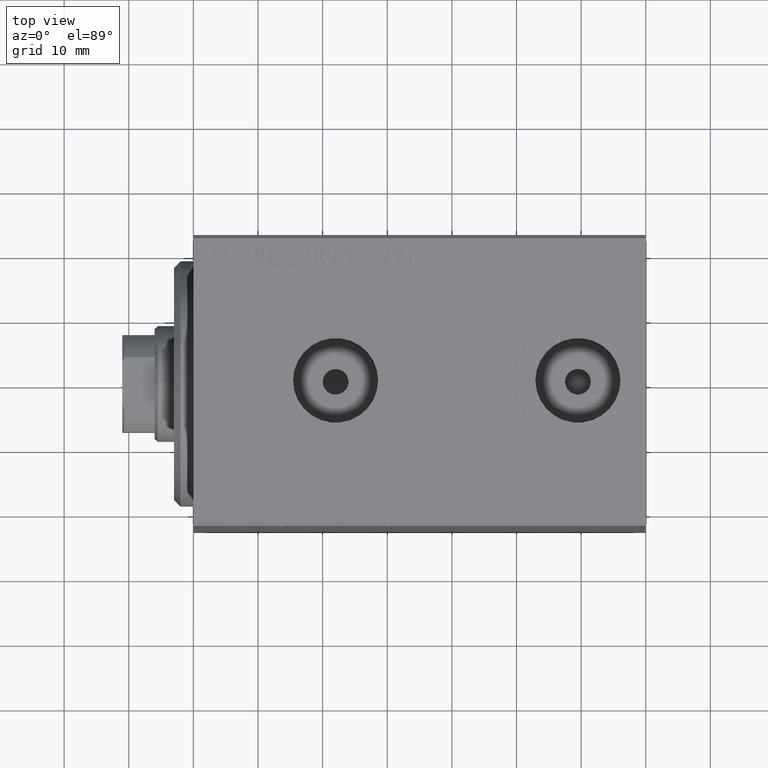
[diagram: clean part render]
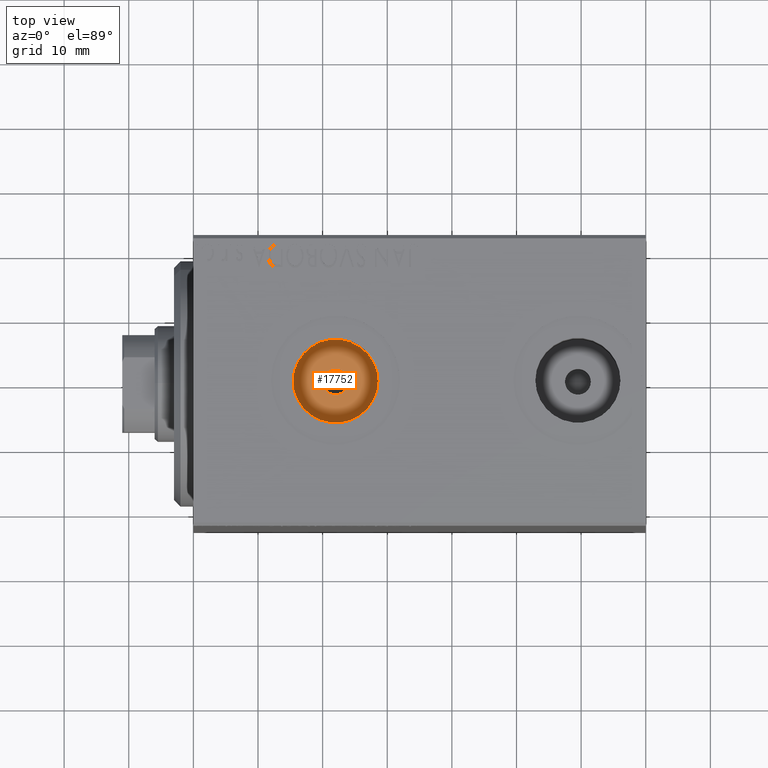
[diagram: same view with one face highlighted and labeled with its STEP entity id]
A machine part, top view. The second image highlights one B-rep face of the part: STEP entity #17752.
In plain terms, the highlighted planar face has unit normal (0, 0, 1).
Its self-contained STEP definition (entity closure, byte-faithful):
#896 = ORIENTED_EDGE ( 'NONE', *, *, #9051, .F. ) ;
#2394 = DIRECTION ( 'NONE',  ( 1.000000000000000000, 0.000000000000000000, 0.000000000000000000 ) ) ;
#2836 = DIRECTION ( 'NONE',  ( 1.000000000000000000, 0.000000000000000000, 0.000000000000000000 ) ) ;
#5828 = CIRCLE ( 'NONE', #29979, 2.000000000000001776 ) ;
#6339 = VERTEX_POINT ( 'NONE', #38055 ) ;
#6794 = AXIS2_PLACEMENT_3D ( 'NONE', #13448, #43482, #23896 ) ;
#9051 = EDGE_CURVE ( 'NONE', #41443, #6339, #5828, .T. ) ;
#9918 = EDGE_CURVE ( 'NONE', #6339, #41443, #23604, .T. ) ;
#11534 = AXIS2_PLACEMENT_3D ( 'NONE', #16857, #16636, #2836 ) ;
#13298 = DIRECTION ( 'NONE',  ( 0.000000000000000000, 0.000000000000000000, 1.000000000000000000 ) ) ;
#13448 = CARTESIAN_POINT ( 'NONE',  ( 22.00000000000000000, -5.011423375044109822E-15, 19.23999999999999844 ) ) ;
#16291 = VERTEX_POINT ( 'NONE', #34558 ) ;
#16636 = DIRECTION ( 'NONE',  ( 0.000000000000000000, 0.000000000000000000, 1.000000000000000000 ) ) ;
#16857 = CARTESIAN_POINT ( 'NONE',  ( 22.00000000000000000, -5.011423375044109822E-15, 19.23999999999999844 ) ) ;
#17752 = ADVANCED_FACE ( 'NONE', ( #26619, #29726 ), #43290, .T. ) ;
#20192 = CARTESIAN_POINT ( 'NONE',  ( 22.00000000000000000, -5.011423375044109822E-15, 19.23999999999999844 ) ) ;
#20351 = ORIENTED_EDGE ( 'NONE', *, *, #21733, .T. ) ;
#21733 = EDGE_CURVE ( 'NONE', #16291, #23944, #31596, .T. ) ;
#21917 = DIRECTION ( 'NONE',  ( 0.000000000000000000, 0.000000000000000000, 1.000000000000000000 ) ) ;
#22365 = CARTESIAN_POINT ( 'NONE',  ( 22.00000000000000000, -5.011423375044109822E-15, 19.23999999999999844 ) ) ;
#22391 = AXIS2_PLACEMENT_3D ( 'NONE', #22836, #23270, #30162 ) ;
#22836 = CARTESIAN_POINT ( 'NONE',  ( 22.00000000000000000, -5.011423375044109822E-15, 19.23999999999999844 ) ) ;
#23000 = CARTESIAN_POINT ( 'NONE',  ( 28.57999999999999829, -5.011423375044109822E-15, 19.23999999999999844 ) ) ;
#23270 = DIRECTION ( 'NONE',  ( 0.000000000000000000, 0.000000000000000000, 1.000000000000000000 ) ) ;
#23604 = CIRCLE ( 'NONE', #11534, 2.000000000000001776 ) ;
#23779 = AXIS2_PLACEMENT_3D ( 'NONE', #22365, #21917, #39037 ) ;
#23896 = DIRECTION ( 'NONE',  ( 1.000000000000000000, 0.000000000000000000, 0.000000000000000000 ) ) ;
#23944 = VERTEX_POINT ( 'NONE', #23000 ) ;
#24948 = EDGE_CURVE ( 'NONE', #23944, #16291, #25982, .T. ) ;
#25170 = CARTESIAN_POINT ( 'NONE',  ( 24.00000000000000000, -5.011423375044109822E-15, 19.23999999999999844 ) ) ;
#25982 = CIRCLE ( 'NONE', #6794, 6.579999999999999183 ) ;
#26619 = FACE_BOUND ( 'NONE', #33394, .T. ) ;
#27400 = EDGE_LOOP ( 'NONE', ( #34832, #20351 ) ) ;
#29726 = FACE_OUTER_BOUND ( 'NONE', #27400, .T. ) ;
#29957 = ORIENTED_EDGE ( 'NONE', *, *, #9918, .F. ) ;
#29979 = AXIS2_PLACEMENT_3D ( 'NONE', #20192, #13298, #2394 ) ;
#30162 = DIRECTION ( 'NONE',  ( 1.000000000000000000, 0.000000000000000000, -0.000000000000000000 ) ) ;
#31596 = CIRCLE ( 'NONE', #23779, 6.579999999999999183 ) ;
#33394 = EDGE_LOOP ( 'NONE', ( #896, #29957 ) ) ;
#34558 = CARTESIAN_POINT ( 'NONE',  ( 15.41999999999999993, -4.205605781205151569E-15, 19.23999999999999844 ) ) ;
#34832 = ORIENTED_EDGE ( 'NONE', *, *, #24948, .T. ) ;
#38055 = CARTESIAN_POINT ( 'NONE',  ( 19.99999999999999645, -4.766494015214639526E-15, 19.23999999999999844 ) ) ;
#39037 = DIRECTION ( 'NONE',  ( 1.000000000000000000, 0.000000000000000000, 0.000000000000000000 ) ) ;
#41443 = VERTEX_POINT ( 'NONE', #25170 ) ;
#43290 = PLANE ( 'NONE',  #22391 ) ;
#43482 = DIRECTION ( 'NONE',  ( 0.000000000000000000, 0.000000000000000000, 1.000000000000000000 ) ) ;